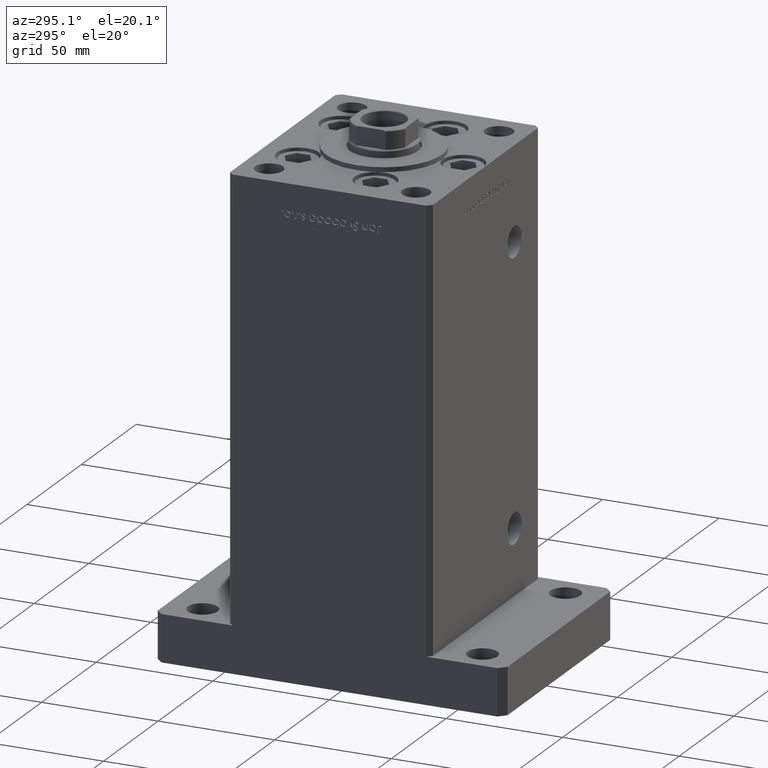
[diagram: clean part render]
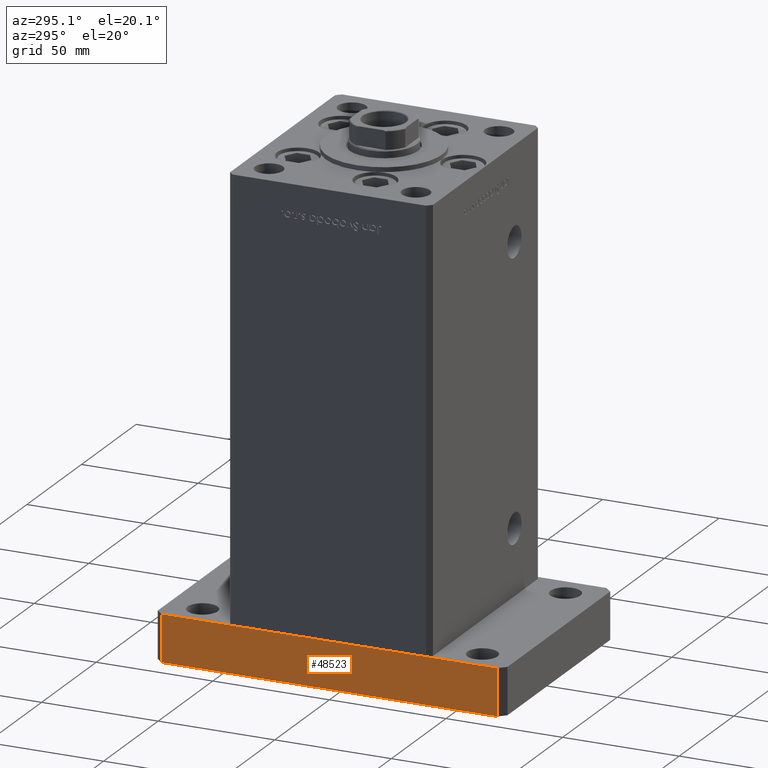
[diagram: same view with one face highlighted and labeled with its STEP entity id]
A machine part, auxiliary view. The second image highlights one B-rep face of the part: STEP entity #48523.
In plain terms, the highlighted planar face has unit normal (1, 0, 0).
Its self-contained STEP definition (entity closure, byte-faithful):
#1797 = ORIENTED_EDGE ( 'NONE', *, *, #22226, .F. ) ;
#3476 = AXIS2_PLACEMENT_3D ( 'NONE', #42647, #9536, #40390 ) ;
#3812 = DIRECTION ( 'NONE',  ( -0.000000000000000000, -0.000000000000000000, -1.000000000000000000 ) ) ;
#4300 = LINE ( 'NONE', #12440, #14160 ) ;
#4739 = EDGE_CURVE ( 'NONE', #15949, #14878, #8684, .T. ) ;
#7208 = EDGE_LOOP ( 'NONE', ( #17861, #34580, #1797, #40045 ) ) ;
#7299 = CARTESIAN_POINT ( 'NONE',  ( -49.99999999999998579, -72.00000000000001421, 20.00000000000000000 ) ) ;
#7457 = LINE ( 'NONE', #24294, #32503 ) ;
#8684 = LINE ( 'NONE', #29310, #48511 ) ;
#9536 = DIRECTION ( 'NONE',  ( 1.000000000000000000, 1.927470528863118802E-16, -0.000000000000000000 ) ) ;
#11647 = VERTEX_POINT ( 'NONE', #7299 ) ;
#12440 = CARTESIAN_POINT ( 'NONE',  ( -50.00000000000001421, 72.00000000000000000, 20.00000000000000000 ) ) ;
#14160 = VECTOR ( 'NONE', #15984, 1000.000000000000000 ) ;
#14878 = VERTEX_POINT ( 'NONE', #35920 ) ;
#14938 = EDGE_CURVE ( 'NONE', #14878, #46706, #47590, .T. ) ;
#15949 = VERTEX_POINT ( 'NONE', #42125 ) ;
#15984 = DIRECTION ( 'NONE',  ( 1.927470528863118802E-16, -1.000000000000000000, 0.000000000000000000 ) ) ;
#17861 = ORIENTED_EDGE ( 'NONE', *, *, #14938, .T. ) ;
#19488 = FACE_OUTER_BOUND ( 'NONE', #7208, .T. ) ;
#22226 = EDGE_CURVE ( 'NONE', #15949, #11647, #4300, .T. ) ;
#24294 = CARTESIAN_POINT ( 'NONE',  ( -49.99999999999998579, -72.00000000000001421, 20.00000000000000000 ) ) ;
#25955 = EDGE_CURVE ( 'NONE', #11647, #46706, #7457, .T. ) ;
#26370 = PLANE ( 'NONE',  #3476 ) ;
#26970 = DIRECTION ( 'NONE',  ( 1.927470528863118802E-16, -1.000000000000000000, 0.000000000000000000 ) ) ;
#29310 = CARTESIAN_POINT ( 'NONE',  ( -50.00000000000001421, 72.00000000000000000, 20.00000000000000000 ) ) ;
#32503 = VECTOR ( 'NONE', #52502, 1000.000000000000000 ) ;
#34580 = ORIENTED_EDGE ( 'NONE', *, *, #25955, .F. ) ;
#35817 = CARTESIAN_POINT ( 'NONE',  ( -49.99999999999998579, -72.00000000000001421, 0.000000000000000000 ) ) ;
#35920 = CARTESIAN_POINT ( 'NONE',  ( -50.00000000000001421, 72.00000000000000000, 0.000000000000000000 ) ) ;
#40045 = ORIENTED_EDGE ( 'NONE', *, *, #4739, .T. ) ;
#40390 = DIRECTION ( 'NONE',  ( -1.927470528863118802E-16, 1.000000000000000000, 0.000000000000000000 ) ) ;
#40955 = VECTOR ( 'NONE', #26970, 1000.000000000000000 ) ;
#42125 = CARTESIAN_POINT ( 'NONE',  ( -50.00000000000001421, 72.00000000000000000, 20.00000000000000000 ) ) ;
#42647 = CARTESIAN_POINT ( 'NONE',  ( -50.00000000000001421, 72.00000000000000000, 20.00000000000000000 ) ) ;
#43781 = CARTESIAN_POINT ( 'NONE',  ( -50.00000000000001421, 72.00000000000000000, 0.000000000000000000 ) ) ;
#46706 = VERTEX_POINT ( 'NONE', #35817 ) ;
#47590 = LINE ( 'NONE', #43781, #40955 ) ;
#48511 = VECTOR ( 'NONE', #3812, 1000.000000000000000 ) ;
#48523 = ADVANCED_FACE ( 'NONE', ( #19488 ), #26370, .F. ) ;
#52502 = DIRECTION ( 'NONE',  ( -0.000000000000000000, -0.000000000000000000, -1.000000000000000000 ) ) ;